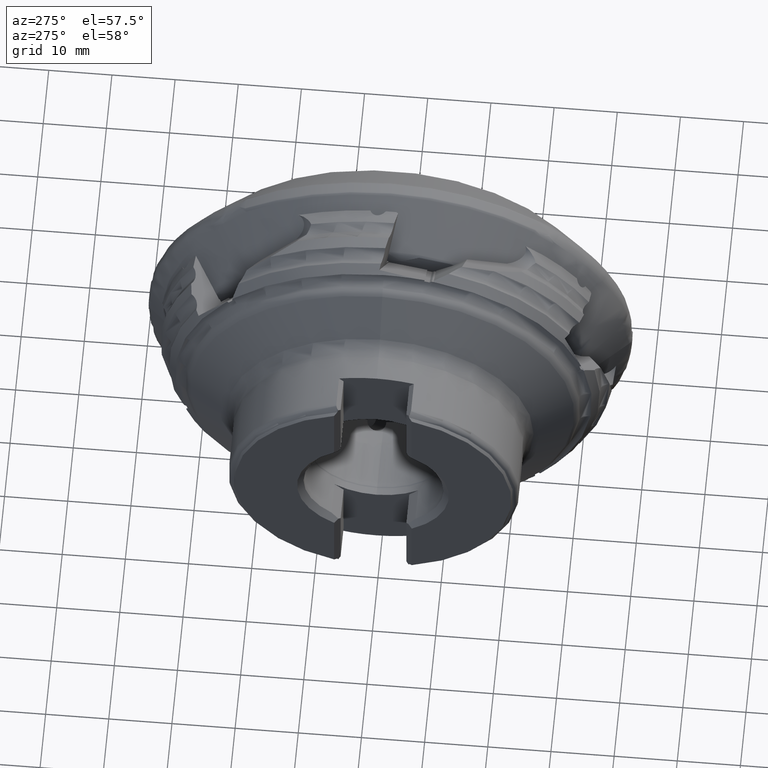
[diagram: clean part render]
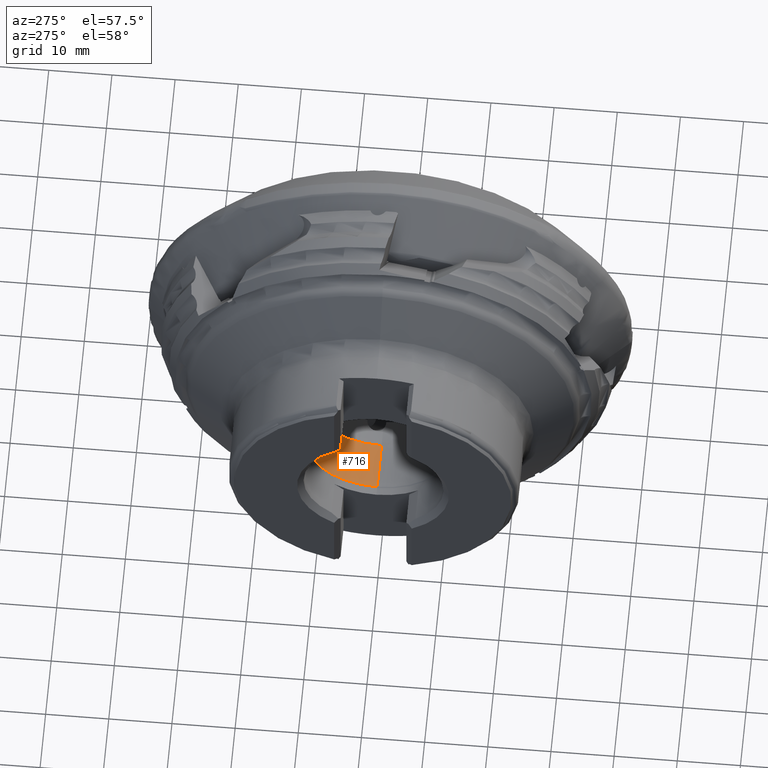
[diagram: same view with one face highlighted and labeled with its STEP entity id]
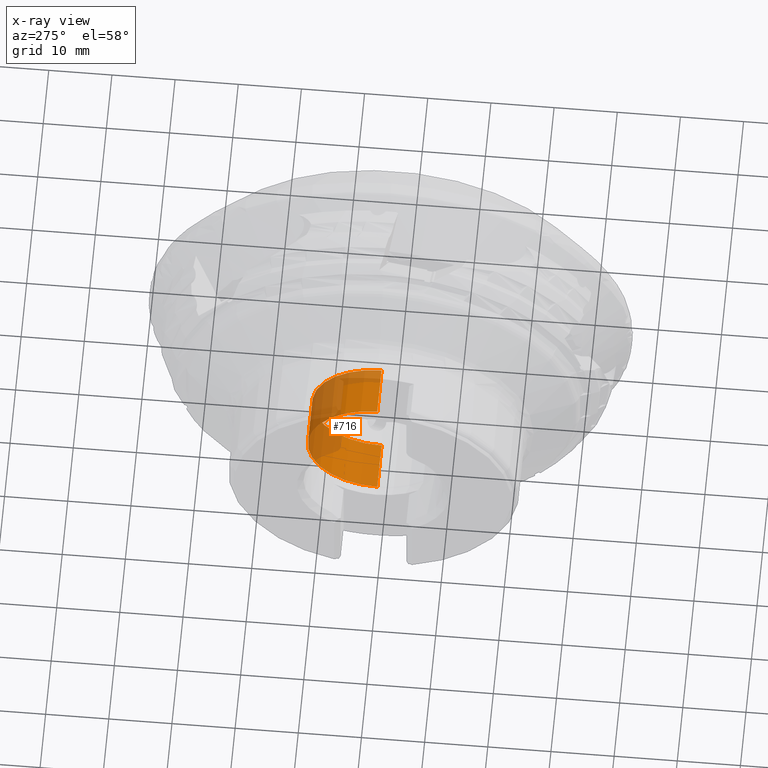
[diagram: x-ray of the same camera — body ghosted, the highlighted face saturated]
A machine part, auxiliary view. The second image highlights one B-rep face of the part: STEP entity #716.
The next image is the same camera in x-ray: the body ghosted, the highlighted face saturated — about 44% of this face is hidden behind the body in this view.
In plain terms, the highlighted cylindrical surface (partial cylindrical patch) has radius 11 mm, axis along (-1, -0, -0).
Its self-contained STEP definition (entity closure, byte-faithful):
#235 = DIRECTION ( 'NONE',  ( 0.0000000000000000000, 0.0000000000000000000, 1.000000000000000000 ) ) ;
#363 = CARTESIAN_POINT ( 'NONE',  ( -23.71634727082118100, 0.0000000000000000000, 0.0000000000000000000 ) ) ;
#716 = ADVANCED_FACE ( 'NONE', ( #4649 ), #1857, .F. ) ;
#1231 = EDGE_LOOP ( 'NONE', ( #9523, #4450, #1317, #7703 ) ) ;
#1291 = DIRECTION ( 'NONE',  ( 0.0000000000000000000, 0.0000000000000000000, -1.000000000000000000 ) ) ;
#1317 = ORIENTED_EDGE ( 'NONE', *, *, #11247, .T. ) ;
#1625 = CARTESIAN_POINT ( 'NONE',  ( -23.71634727082118100, 0.0000000000000000000, -11.00000000000000000 ) ) ;
#1857 = CYLINDRICAL_SURFACE ( 'NONE', #10094, 11.00000000000000000 ) ;
#1883 = CARTESIAN_POINT ( 'NONE',  ( -31.45000000000001400, 1.351703904558891000E-015, -11.00000000000000000 ) ) ;
#1982 = DIRECTION ( 'NONE',  ( -1.000000000000000000, -0.0000000000000000000, -0.0000000000000000000 ) ) ;
#2011 = LINE ( 'NONE', #4334, #11266 ) ;
#2067 = VERTEX_POINT ( 'NONE', #4032 ) ;
#2383 = VERTEX_POINT ( 'NONE', #1883 ) ;
#3639 = CIRCLE ( 'NONE', #9203, 11.00000000000000000 ) ;
#3665 = CARTESIAN_POINT ( 'NONE',  ( -23.71634727082118100, 1.356296330055693200E-015, 11.00000000000000000 ) ) ;
#4032 = CARTESIAN_POINT ( 'NONE',  ( -31.45000000000001400, 0.0000000000000000000, 11.00000000000000000 ) ) ;
#4046 = DIRECTION ( 'NONE',  ( -1.000000000000000000, -0.0000000000000000000, -0.0000000000000000000 ) ) ;
#4334 = CARTESIAN_POINT ( 'NONE',  ( -19.25000000000000700, 0.0000000000000000000, 11.00000000000000000 ) ) ;
#4450 = ORIENTED_EDGE ( 'NONE', *, *, #9895, .F. ) ;
#4649 = FACE_OUTER_BOUND ( 'NONE', #1231, .T. ) ;
#4927 = CIRCLE ( 'NONE', #11104, 11.00000000000000000 ) ;
#5256 = DIRECTION ( 'NONE',  ( -1.000000000000000000, -0.0000000000000000000, -0.0000000000000000000 ) ) ;
#5818 = DIRECTION ( 'NONE',  ( 1.000000000000000000, -0.0000000000000000000, -0.0000000000000000000 ) ) ;
#6553 = EDGE_CURVE ( 'NONE', #7207, #2383, #7854, .T. ) ;
#6857 = DIRECTION ( 'NONE',  ( -1.000000000000000000, 0.0000000000000000000, 0.0000000000000000000 ) ) ;
#7207 = VERTEX_POINT ( 'NONE', #1625 ) ;
#7312 = VERTEX_POINT ( 'NONE', #3665 ) ;
#7577 = VECTOR ( 'NONE', #4046, 1000.000000000000000 ) ;
#7703 = ORIENTED_EDGE ( 'NONE', *, *, #11579, .F. ) ;
#7854 = LINE ( 'NONE', #8664, #7577 ) ;
#8477 = DIRECTION ( 'NONE',  ( 0.0000000000000000000, 0.0000000000000000000, 1.000000000000000000 ) ) ;
#8664 = CARTESIAN_POINT ( 'NONE',  ( -19.25000000000000700, 1.347111479062088400E-015, -11.00000000000000000 ) ) ;
#9203 = AXIS2_PLACEMENT_3D ( 'NONE', #363, #6857, #1291 ) ;
#9523 = ORIENTED_EDGE ( 'NONE', *, *, #6553, .F. ) ;
#9895 = EDGE_CURVE ( 'NONE', #7312, #7207, #3639, .T. ) ;
#10094 = AXIS2_PLACEMENT_3D ( 'NONE', #11148, #1982, #8477 ) ;
#11104 = AXIS2_PLACEMENT_3D ( 'NONE', #11330, #5818, #235 ) ;
#11148 = CARTESIAN_POINT ( 'NONE',  ( -19.25000000000000700, 0.0000000000000000000, 0.0000000000000000000 ) ) ;
#11247 = EDGE_CURVE ( 'NONE', #7312, #2067, #2011, .T. ) ;
#11266 = VECTOR ( 'NONE', #5256, 1000.000000000000000 ) ;
#11330 = CARTESIAN_POINT ( 'NONE',  ( -31.45000000000001400, 0.0000000000000000000, 0.0000000000000000000 ) ) ;
#11579 = EDGE_CURVE ( 'NONE', #2383, #2067, #4927, .T. ) ;